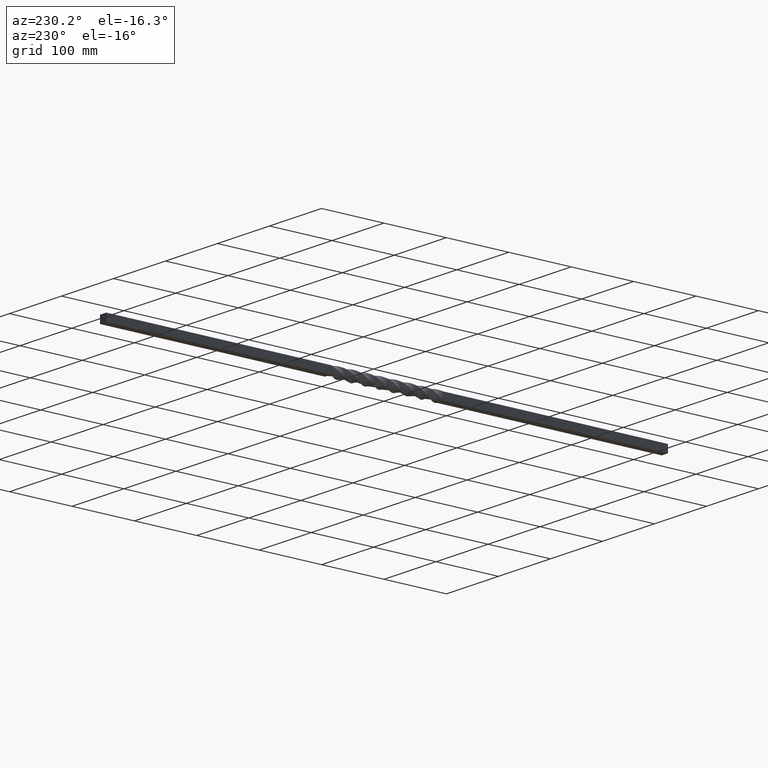
[diagram: clean part render]
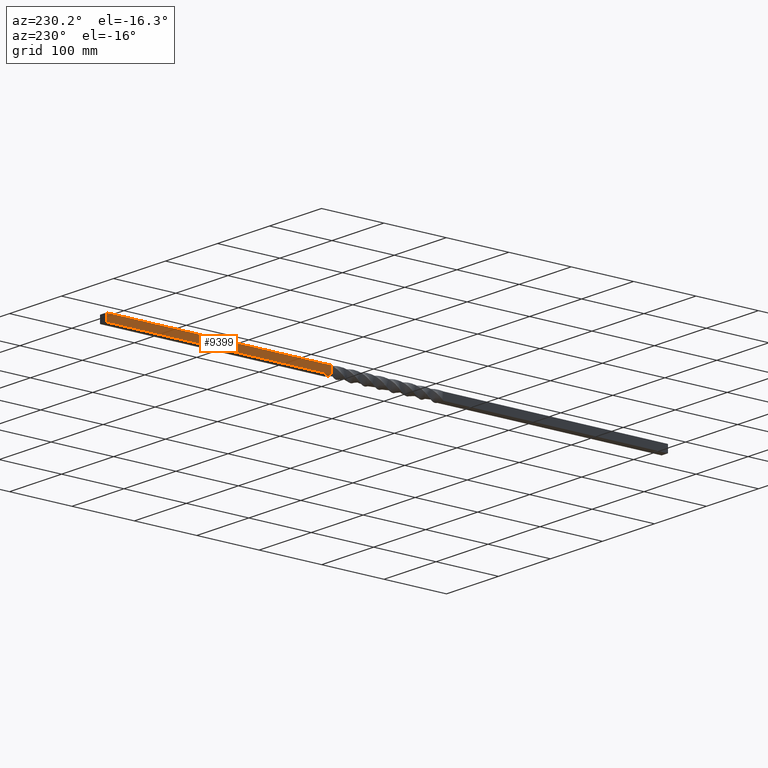
[diagram: same view with one face highlighted and labeled with its STEP entity id]
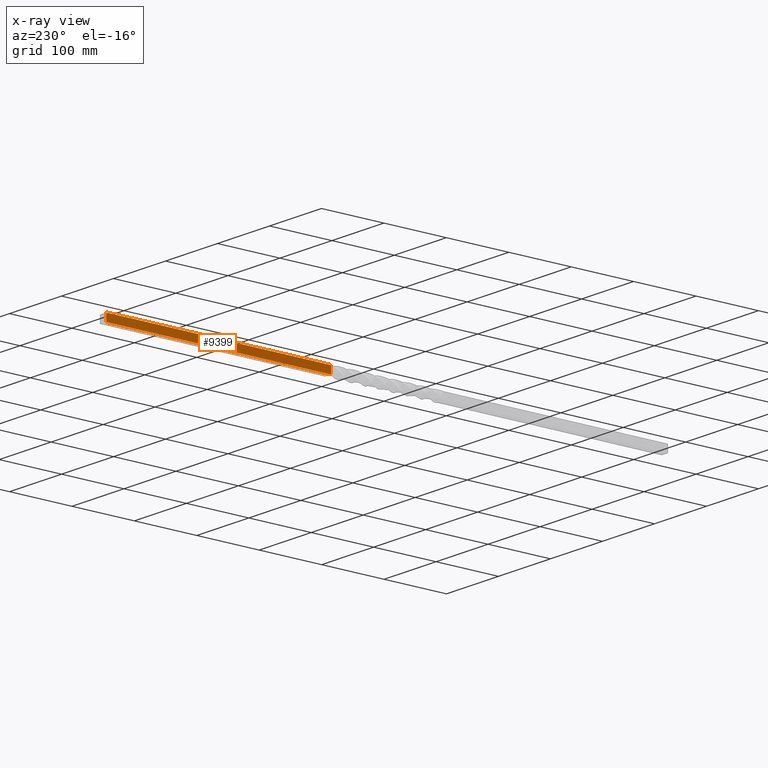
[diagram: x-ray of the same camera — body ghosted, the highlighted face saturated]
A machine part, auxiliary view. The second image highlights one B-rep face of the part: STEP entity #9399.
The next image is the same camera in x-ray: the body ghosted, the highlighted face saturated — about 0% of this face is hidden behind the body in this view.
In plain terms, the highlighted planar face has unit normal (1, -0, 0).
Its self-contained STEP definition (entity closure, byte-faithful):
#191 = ORIENTED_EDGE ( 'NONE', *, *, #2988, .F. ) ;
#375 = LINE ( 'NONE', #4418, #6967 ) ;
#491 = ORIENTED_EDGE ( 'NONE', *, *, #3390, .F. ) ;
#1375 = VECTOR ( 'NONE', #9818, 1000.000000000000000 ) ;
#1615 = LINE ( 'NONE', #6389, #1375 ) ;
#1695 = VECTOR ( 'NONE', #2957, 1000.000000000000000 ) ;
#2276 = CARTESIAN_POINT ( 'NONE',  ( -6.000000000000000888, 90.00000000000000000, 0.000000000000000000 ) ) ;
#2522 = EDGE_CURVE ( 'NONE', #6585, #9508, #7518, .T. ) ;
#2540 = VERTEX_POINT ( 'NONE', #6350 ) ;
#2542 = PLANE ( 'NONE',  #2956 ) ;
#2956 = AXIS2_PLACEMENT_3D ( 'NONE', #3447, #9427, #5152 ) ;
#2957 = DIRECTION ( 'NONE',  ( 0.000000000000000000, -0.000000000000000000, 1.000000000000000000 ) ) ;
#2988 = EDGE_CURVE ( 'NONE', #8548, #2540, #4158, .T. ) ;
#3390 = EDGE_CURVE ( 'NONE', #2540, #9508, #375, .T. ) ;
#3447 = CARTESIAN_POINT ( 'NONE',  ( -5.999999997126725937, 916.9705627633168206, -6.000000006995465540 ) ) ;
#4158 = LINE ( 'NONE', #6016, #4564 ) ;
#4366 = EDGE_LOOP ( 'NONE', ( #191, #6898, #6653, #491 ) ) ;
#4418 = CARTESIAN_POINT ( 'NONE',  ( -6.000000006995406032, 916.9705627633168206, 5.999999997126741924 ) ) ;
#4564 = VECTOR ( 'NONE', #5219, 1000.000000000000000 ) ;
#5152 = DIRECTION ( 'NONE',  ( 8.223900435132272051E-10, 0.000000000000000000, -1.000000000000000000 ) ) ;
#5219 = DIRECTION ( 'NONE',  ( -8.223900435132272051E-10, 0.000000000000000000, 1.000000000000000000 ) ) ;
#5860 = CARTESIAN_POINT ( 'NONE',  ( -5.999999997126725937, 89.99999998638273269, -6.000000006995465540 ) ) ;
#6016 = CARTESIAN_POINT ( 'NONE',  ( -5.999999997126725937, 450.0000000000000000, -6.000000006995465540 ) ) ;
#6350 = CARTESIAN_POINT ( 'NONE',  ( -6.000000006995406032, 450.0000000000000000, 5.999999997126741924 ) ) ;
#6389 = CARTESIAN_POINT ( 'NONE',  ( -5.999999997126725937, 916.9705627633168206, -6.000000006995465540 ) ) ;
#6585 = VERTEX_POINT ( 'NONE', #5860 ) ;
#6653 = ORIENTED_EDGE ( 'NONE', *, *, #2522, .T. ) ;
#6898 = ORIENTED_EDGE ( 'NONE', *, *, #9123, .T. ) ;
#6967 = VECTOR ( 'NONE', #8672, 1000.000000000000000 ) ;
#7518 = LINE ( 'NONE', #2276, #1695 ) ;
#8534 = CARTESIAN_POINT ( 'NONE',  ( -5.999999997126725937, 450.0000000000000000, -6.000000006995465540 ) ) ;
#8548 = VERTEX_POINT ( 'NONE', #8534 ) ;
#8672 = DIRECTION ( 'NONE',  ( -0.000000000000000000, -1.000000000000000000, -0.000000000000000000 ) ) ;
#9123 = EDGE_CURVE ( 'NONE', #8548, #6585, #1615, .T. ) ;
#9399 = ADVANCED_FACE ( 'NONE', ( #10742 ), #2542, .F. ) ;
#9427 = DIRECTION ( 'NONE',  ( 1.000000000000000000, -0.000000000000000000, 8.223900435132272051E-10 ) ) ;
#9508 = VERTEX_POINT ( 'NONE', #9539 ) ;
#9539 = CARTESIAN_POINT ( 'NONE',  ( -6.000000006995406032, 89.99999998638266163, 5.999999997126741924 ) ) ;
#9818 = DIRECTION ( 'NONE',  ( -0.000000000000000000, -1.000000000000000000, -0.000000000000000000 ) ) ;
#10742 = FACE_OUTER_BOUND ( 'NONE', #4366, .T. ) ;